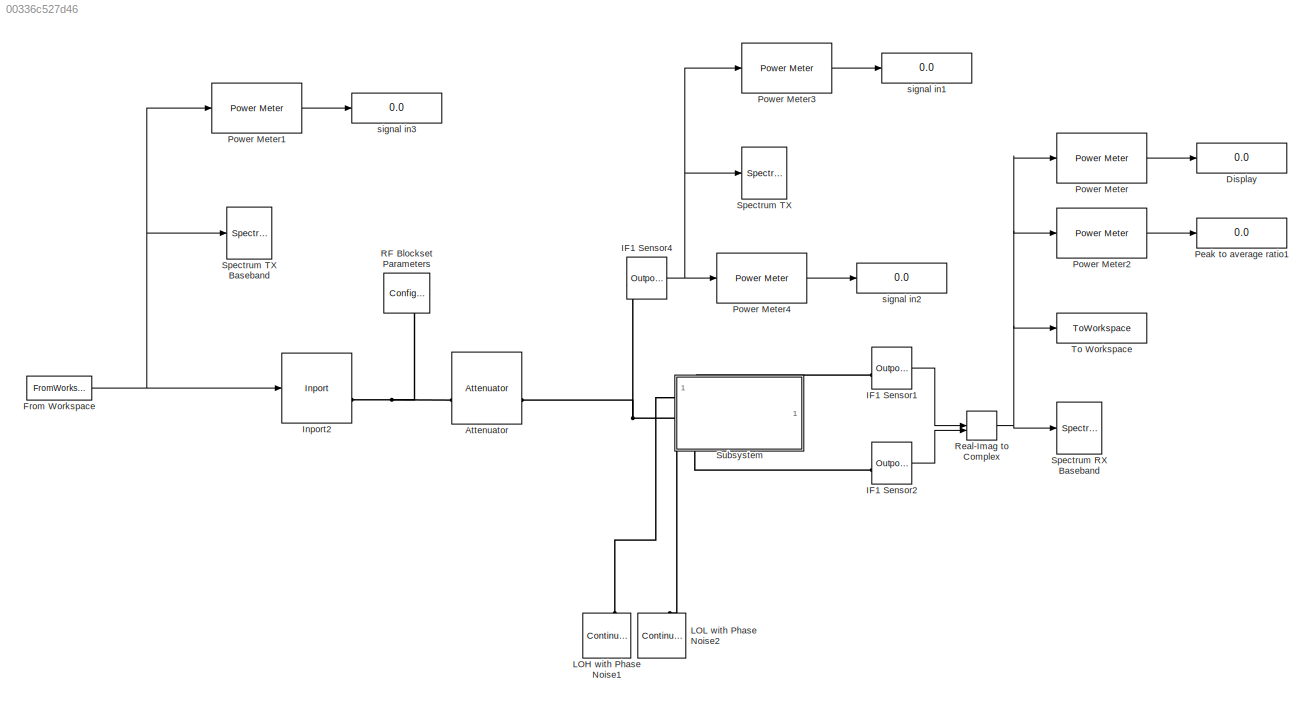
MODEL slx_00336c527d46
KIND model
CONFIG AbsTol = auto
CONFIG EnableMultiTasking = off
CONFIG FixedStep = auto
CONFIG MaxStep = auto
CONFIG MinStep = auto
CONFIG RelTol = 1e-3
CONFIG SampleTimeConstraint = Unconstrained
CONFIG SolverName = VariableStepAuto
CONFIG StartTime = 0.0
CONFIG StopTime = 8.3e-3
BLOCK [Reference] Attenuator  REF=simrfV2elements/Attenuator
  SourceBlock = simrfV2elements/Attenuator
  SourceType = Attenuator
BLOCK [Display] Display
  Decimation = 1
BLOCK [FromWorkspace] From Workspace
  SampleTime = -1
  VariableName = rx_in
BLOCK [Reference] IF1 Sensor1  REF=simrfV2util1/Outport
  SourceBlock = simrfV2util1/Outport
  SourceType = Outport
BLOCK [Reference] IF1 Sensor2  REF=simrfV2util1/Outport
  SourceBlock = simrfV2util1/Outport
  SourceType = Outport
BLOCK [Reference] IF1 Sensor4  REF=simrfV2util1/Outport
  SourceBlock = simrfV2util1/Outport
  SourceType = Outport
BLOCK [Reference] Inport2  REF=simrfV2util1/Inport
  SourceBlock = simrfV2util1/Inport
  SourceType = Inport
BLOCK [Reference] LOH with Phase Noise1  REF=simrfV2sources1/Continuous
Wave
  NameLocation = top
  SourceBlock = simrfV2sources1/Continuous\nWave
  SourceType = CW Source
BLOCK [Reference] LOL with Phase Noise2  REF=simrfV2sources1/Continuous
Wave
  NameLocation = right
  SourceBlock = simrfV2sources1/Continuous\nWave
  SourceType = CW Source
BLOCK [Display] Peak to average ratio1
  Decimation = 1
BLOCK [Reference] Power Meter  REF=dspstat3/Power Meter
  LibrarySourceBlock = commutil2/Power Meter
  SourceBlock = dspstat3/Power Meter
  SourceType = dsp.simulink.PowerMeter
BLOCK [Reference] Power Meter1  REF=dspstat3/Power Meter
  LibrarySourceBlock = commutil2/Power Meter
  SourceBlock = dspstat3/Power Meter
  SourceType = dsp.simulink.PowerMeter
BLOCK [Reference] Power Meter2  REF=dspstat3/Power Meter
  LibrarySourceBlock = commutil2/Power Meter
  SourceBlock = dspstat3/Power Meter
  SourceType = dsp.simulink.PowerMeter
BLOCK [Reference] Power Meter3  REF=dspstat3/Power Meter
  LibrarySourceBlock = commutil2/Power Meter
  SourceBlock = dspstat3/Power Meter
  SourceType = dsp.simulink.PowerMeter
BLOCK [Reference] Power Meter4  REF=dspstat3/Power Meter
  LibrarySourceBlock = commutil2/Power Meter
  SourceBlock = dspstat3/Power Meter
  SourceType = dsp.simulink.PowerMeter
BLOCK [Reference] RF Blockset Parameters  REF=simrfV2util1/Configuration
  NameLocation = right
  SourceBlock = simrfV2util1/Configuration
  SourceType = Configuration
BLOCK [RealImagToComplex] Real-Imag to Complex
BLOCK [SpectrumAnalyzer] Spectrum RX Baseband
  ScopeSpecificationString = spbscopes.SpectrumAnalyzerBlockCfg('CurrentConfiguration', extmgr.ConfigurationSet(extmgr.Configuration('Core','General UI',true),extmgr.Configuration('Core','Source UI',true),extmgr.Configuration('Sources','WiredSimulink',true),extmgr.Configuration('Sources','Simulink',false),extmgr.Configuration('Sources','File',false),extmgr.Configuration('Sources','Workspace',false),extmgr.Configuration('Sourc...<+3159ch>
BLOCK [SpectrumAnalyzer] Spectrum TX
  ScopeSpecificationString = spbscopes.SpectrumAnalyzerBlockCfg('CurrentConfiguration', extmgr.ConfigurationSet(extmgr.Configuration('Core','General UI',true),extmgr.Configuration('Core','Source UI',true),extmgr.Configuration('Sources','WiredSimulink',true),extmgr.Configuration('Sources','Simulink',false),extmgr.Configuration('Sources','File',false),extmgr.Configuration('Sources','Workspace',false),extmgr.Configuration('Sourc...<+3425ch>
BLOCK [SpectrumAnalyzer] Spectrum TX Baseband
  ScopeSpecificationString = spbscopes.SpectrumAnalyzerBlockCfg('CurrentConfiguration', extmgr.ConfigurationSet(extmgr.Configuration('Core','General UI',true),extmgr.Configuration('Core','Source UI',true),extmgr.Configuration('Sources','WiredSimulink',true),extmgr.Configuration('Sources','Simulink',false),extmgr.Configuration('Sources','File',false),extmgr.Configuration('Sources','Workspace',false),extmgr.Configuration('Sourc...<+3501ch>
BLOCK [SubSystem] Subsystem
  PortSchema = {"entries":[{"content":{"sides":[{"content":{"connectorIds":["LConn3","LConn1","LConn2"]},"type":"ConnectorPlacement.EquallySpacedRectSide","uuid":"8336b51e-e5d8-49cc-804f-7bfb99400ab0"},{"content":{"connectorIds":["LConn4","LConn5"],"side":"RIGHT"},"type":"ConnectorPlacement.EquallySpacedRectSide","uuid":"6f005c77-3014-47d2-89f9-41814728faba"},{"content":{"connectorIds":[],"side":"TOP"},"type":"C...<+272ch>
  ReferencedSubsystem = dn_converter
BLOCK [ToWorkspace] To Workspace
  FixptAsFi = on
  MaxDataPoints = inf
  SampleTime = -1
  VariableName = rx_out
BLOCK [Display] signal in1
  Decimation = 1
BLOCK [Display] signal in2
  Decimation = 1
BLOCK [Display] signal in3
  Decimation = 1
NET From Workspace:1 -> Inport2:1, Power Meter1:1, Spectrum TX Baseband:1
LINE IF1 Sensor1:1 -> Real-Imag to Complex:1
LINE IF1 Sensor2:1 -> Real-Imag to Complex:2
NET IF1 Sensor4:1 -> Power Meter3:1, Power Meter4:1, Spectrum TX:1
LINE Power Meter1:1 -> signal in3:1
LINE Power Meter2:1 -> Peak to average ratio1:1
LINE Power Meter3:1 -> signal in1:1
LINE Power Meter4:1 -> signal in2:1
LINE Power Meter:1 -> Display:1
NET Real-Imag to Complex:1 -> Power Meter2:1, Power Meter:1, Spectrum RX Baseband:1, To Workspace:1
PNET net1: Attenuator:LConn1 -- Inport2:RConn1 -- RF Blockset Parameters:LConn1
PNET net2: Attenuator:RConn1 -- IF1 Sensor4:LConn1 -- Subsystem:LConn3
PLINE IF1 Sensor1:LConn1 -- Subsystem:LConn4
PLINE IF1 Sensor2:LConn1 -- Subsystem:LConn5
PLINE LOH with Phase Noise1:LConn1 -- Subsystem:LConn1
PLINE LOL with Phase Noise2:LConn1 -- Subsystem:LConn2
note: NET lines group one-source signal fan-out (src -> all destinations, sorted); 1:1 wires keep LINE; PNET lines group multi-terminal physical nets as a canonical sorted terminal list (undirected conserving connections); 2-terminal nets keep the pairwise PLINE form
